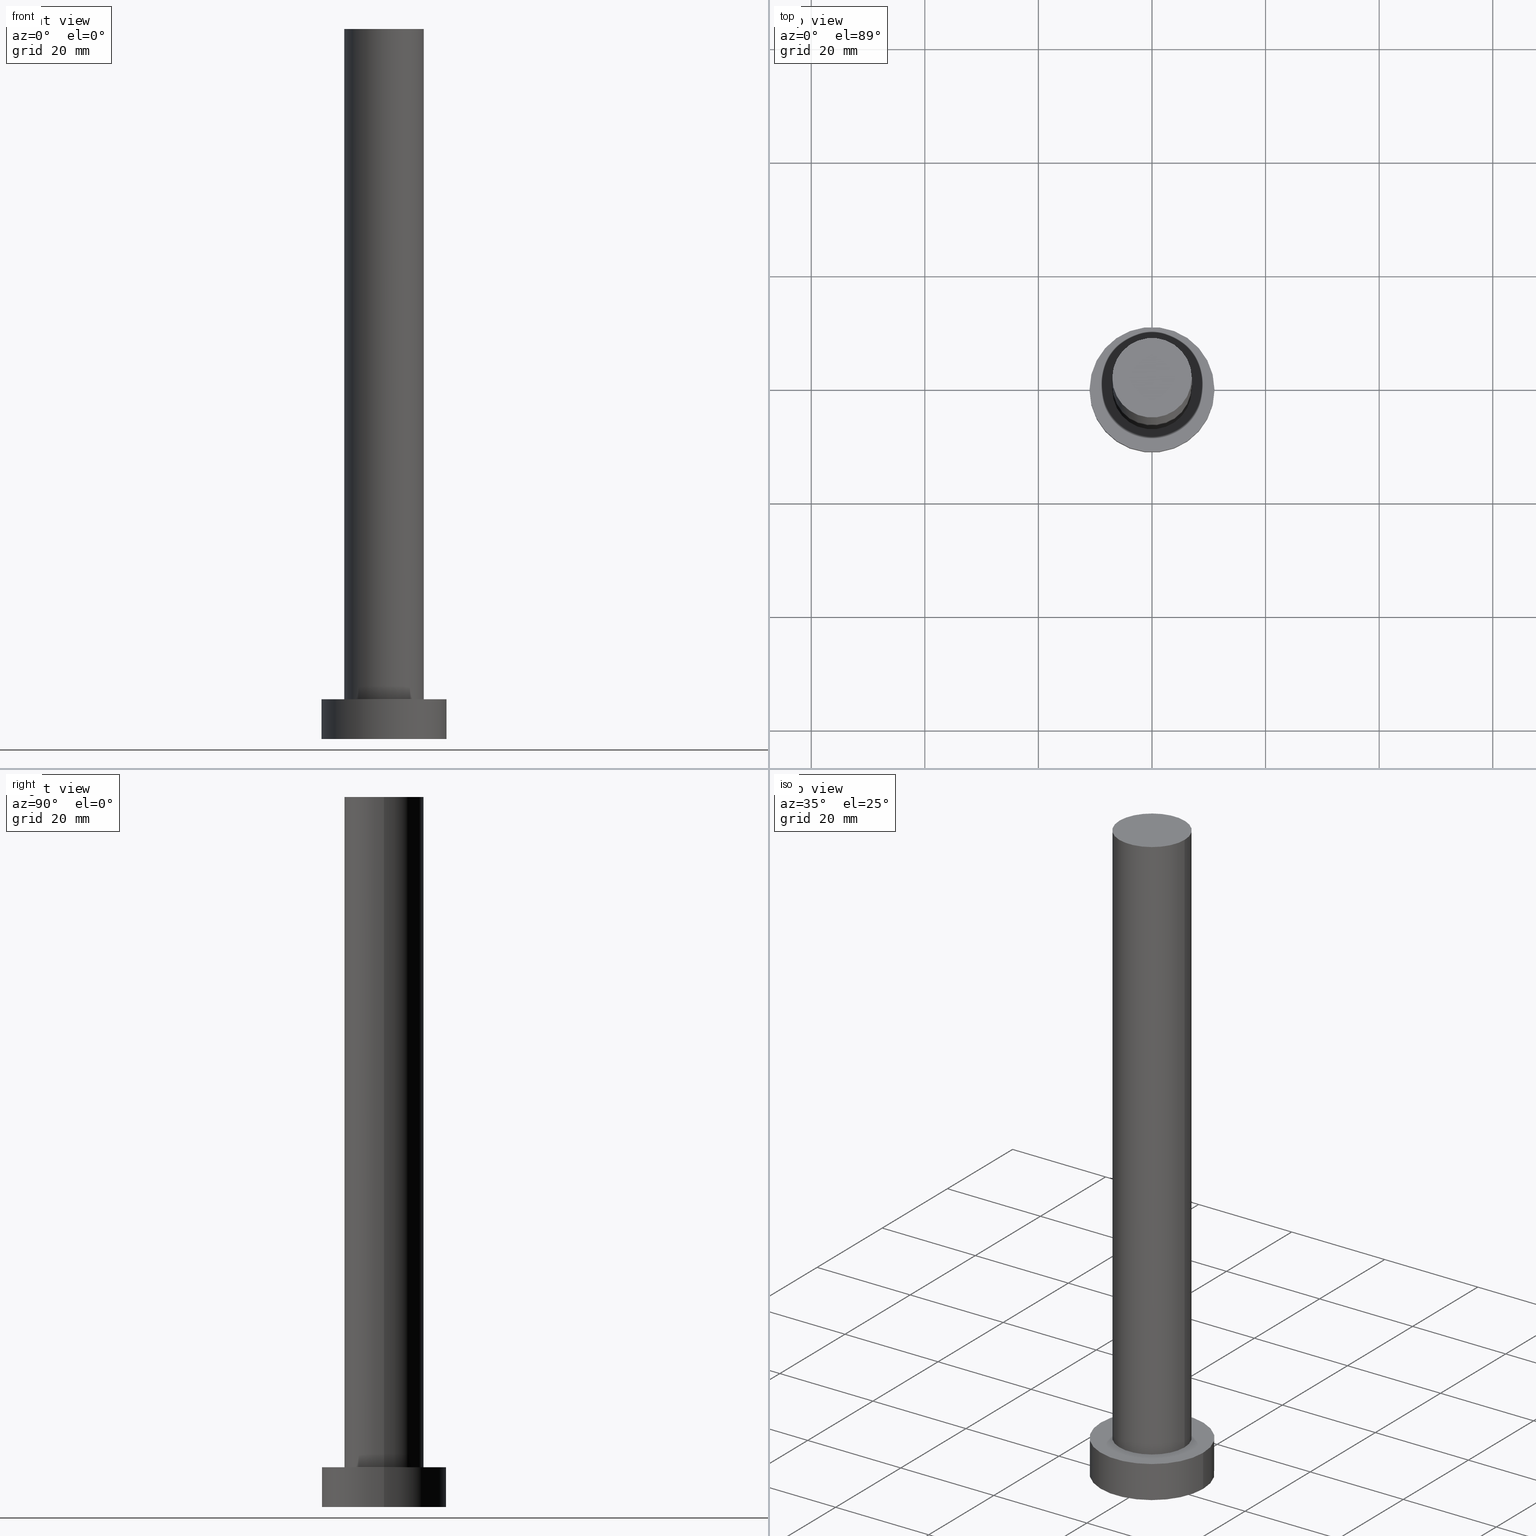
[diagram: canonical four-view strip — front | top / right | iso, engineering-drawing reading convention]
A machine part, canonical four-view strip (front | top / right | iso — engineering-drawing reading convention). The complete STEP part file that produces these views, byte-faithful:
ISO-10303-21;
HEADER;
FILE_DESCRIPTION (( 'STEP AP203' ),
    '1' );
FILE_NAME ('cb62.STEP',
    '2023-02-13T10:36:22',
    ( '' ),
    ( '' ),
    'SwSTEP 2.0',
    'SolidWorks 2019',
    '' );
FILE_SCHEMA (( 'CONFIG_CONTROL_DESIGN' ));
ENDSEC;

DATA;
#1 = ORIENTED_EDGE ( 'NONE', *, *, #49, .F. ) ;
#2 = DATE_TIME_ROLE ( 'creation_date' ) ;
#3 = ORIENTED_EDGE ( 'NONE', *, *, #49, .T. ) ;
#4 = AXIS2_PLACEMENT_3D ( 'NONE', #154, #48, #62 ) ;
#5 = ADVANCED_FACE ( 'NONE', ( #85 ), #21, .T. ) ;
#6 = FACE_OUTER_BOUND ( 'NONE', #74, .T. ) ;
#7 =( GEOMETRIC_REPRESENTATION_CONTEXT ( 3 ) GLOBAL_UNCERTAINTY_ASSIGNED_CONTEXT ( ( #224 ) ) GLOBAL_UNIT_ASSIGNED_CONTEXT ( ( #151, #159, #118 ) ) REPRESENTATION_CONTEXT ( 'NONE', 'WORKASPACE' ) );
#8 = DIRECTION ( 'NONE',  ( 1.000000000000000000, 0.000000000000000000, 0.000000000000000000 ) ) ;
#9 = ORIENTED_EDGE ( 'NONE', *, *, #175, .T. ) ;
#10 = AXIS2_PLACEMENT_3D ( 'NONE', #90, #253, #230 ) ;
#11 = DATE_AND_TIME ( #45, #251 ) ;
#12 = CARTESIAN_POINT ( 'NONE',  ( 0.000000000000000000, 0.000000000000000000, 7.000000000000000000 ) ) ;
#13 = DIRECTION ( 'NONE',  ( 0.000000000000000000, 0.000000000000000000, 1.000000000000000000 ) ) ;
#14 = VERTEX_POINT ( 'NONE', #163 ) ;
#15 = EDGE_CURVE ( 'NONE', #187, #27, #165, .T. ) ;
#16 = CC_DESIGN_PERSON_AND_ORGANIZATION_ASSIGNMENT ( #235, #121, ( #178 ) ) ;
#17 = AXIS2_PLACEMENT_3D ( 'NONE', #203, #42, #78 ) ;
#18 = CARTESIAN_POINT ( 'NONE',  ( -7.000000000000000888, 0.000000000000000000, 7.000000000000000000 ) ) ;
#19 = DIRECTION ( 'NONE',  ( 1.000000000000000000, 0.000000000000000000, 0.000000000000000000 ) ) ;
#20 = ORIENTED_EDGE ( 'NONE', *, *, #192, .T. ) ;
#21 = CYLINDRICAL_SURFACE ( 'NONE', #161, 7.000000000000000888 ) ;
#22 = CC_DESIGN_APPROVAL ( #115, ( #190 ) ) ;
#23 = AXIS2_PLACEMENT_3D ( 'NONE', #92, #13, #86 ) ;
#24 = DIRECTION ( 'NONE',  ( 0.000000000000000000, 0.000000000000000000, 1.000000000000000000 ) ) ;
#25 = CC_DESIGN_PERSON_AND_ORGANIZATION_ASSIGNMENT ( #135, #177, ( #190 ) ) ;
#26 = CARTESIAN_POINT ( 'NONE',  ( 7.000000000000000888, 8.572527594031474176E-16, 125.0000000000000000 ) ) ;
#27 = VERTEX_POINT ( 'NONE', #101 ) ;
#28 = ORGANIZATION ( 'NEUR�EN�', 'NEUR�EN�', '' ) ;
#29 = ORIENTED_EDGE ( 'NONE', *, *, #63, .F. ) ;
#30 = CALENDAR_DATE ( 2023, 13, 2 ) ;
#31 = COORDINATED_UNIVERSAL_TIME_OFFSET ( 1, 0, .AHEAD. ) ;
#32 = CC_DESIGN_APPROVAL ( #145, ( #167 ) ) ;
#33 = CALENDAR_DATE ( 2023, 13, 2 ) ;
#34 = ORIENTED_EDGE ( 'NONE', *, *, #225, .T. ) ;
#35 = DIRECTION ( 'NONE',  ( -1.000000000000000000, 0.000000000000000000, 0.000000000000000000 ) ) ;
#36 = AXIS2_PLACEMENT_3D ( 'NONE', #12, #88, #232 ) ;
#37 = PRODUCT_RELATED_PRODUCT_CATEGORY ( 'detail', '', ( #71 ) ) ;
#38 = CARTESIAN_POINT ( 'NONE',  ( 0.000000000000000000, 0.000000000000000000, 7.000000000000000000 ) ) ;
#39 = DESIGN_CONTEXT ( 'detailed design', #120, 'design' ) ;
#40 = LINE ( 'NONE', #221, #96 ) ;
#41 = ORIENTED_EDGE ( 'NONE', *, *, #131, .F. ) ;
#42 = DIRECTION ( 'NONE',  ( 0.000000000000000000, 0.000000000000000000, 1.000000000000000000 ) ) ;
#43 = CIRCLE ( 'NONE', #226, 11.00000000000000000 ) ;
#44 = PERSON_AND_ORGANIZATION ( #80, #28 ) ;
#45 = CALENDAR_DATE ( 2023, 13, 2 ) ;
#46 = ADVANCED_FACE ( 'NONE', ( #6 ), #191, .T. ) ;
#47 = APPLICATION_PROTOCOL_DEFINITION ( 'international standard', 'config_control_design', 1994, #120 ) ;
#48 = DIRECTION ( 'NONE',  ( -0.000000000000000000, -0.000000000000000000, -1.000000000000000000 ) ) ;
#49 = EDGE_CURVE ( 'NONE', #14, #27, #87, .T. ) ;
#50 = AXIS2_PLACEMENT_3D ( 'NONE', #55, #146, #35 ) ;
#51 = ORIENTED_EDGE ( 'NONE', *, *, #75, .F. ) ;
#52 = CC_DESIGN_PERSON_AND_ORGANIZATION_ASSIGNMENT ( #67, #110, ( #167 ) ) ;
#53 = VERTEX_POINT ( 'NONE', #98 ) ;
#54 = CC_DESIGN_SECURITY_CLASSIFICATION ( #190, ( #167 ) ) ;
#55 = CARTESIAN_POINT ( 'NONE',  ( 0.000000000000000000, 0.000000000000000000, 125.0000000000000000 ) ) ;
#56 = CARTESIAN_POINT ( 'NONE',  ( 0.000000000000000000, 0.000000000000000000, 0.000000000000000000 ) ) ;
#57 = LINE ( 'NONE', #125, #228 ) ;
#58 = PLANE ( 'NONE',  #17 ) ;
#59 = DIRECTION ( 'NONE',  ( -0.000000000000000000, -0.000000000000000000, -1.000000000000000000 ) ) ;
#60 = DIRECTION ( 'NONE',  ( -1.000000000000000000, 0.000000000000000000, 0.000000000000000000 ) ) ;
#61 = AXIS2_PLACEMENT_3D ( 'NONE', #207, #137, #197 ) ;
#62 = DIRECTION ( 'NONE',  ( -1.000000000000000000, 0.000000000000000000, 0.000000000000000000 ) ) ;
#63 = EDGE_CURVE ( 'NONE', #186, #53, #57, .T. ) ;
#64 = APPROVAL_DATE_TIME ( #250, #115 ) ;
#65 = AXIS2_PLACEMENT_3D ( 'NONE', #168, #222, #8 ) ;
#66 = PERSON_AND_ORGANIZATION ( #80, #28 ) ;
#67 = PERSON_AND_ORGANIZATION ( #80, #28 ) ;
#68 = FACE_OUTER_BOUND ( 'NONE', #94, .T. ) ;
#69 = EDGE_LOOP ( 'NONE', ( #76, #162 ) ) ;
#70 = CC_DESIGN_PERSON_AND_ORGANIZATION_ASSIGNMENT ( #44, #133, ( #71 ) ) ;
#71 = PRODUCT ( 'cb62', 'cb62', '', ( #93 ) ) ;
#72 = CIRCLE ( 'NONE', #65, 7.000000000000000888 ) ;
#73 = PERSON_AND_ORGANIZATION ( #80, #28 ) ;
#74 = EDGE_LOOP ( 'NONE', ( #29, #242, #9, #160 ) ) ;
#75 = EDGE_CURVE ( 'NONE', #186, #209, #72, .T. ) ;
#76 = ORIENTED_EDGE ( 'NONE', *, *, #103, .T. ) ;
#77 = AXIS2_PLACEMENT_3D ( 'NONE', #38, #99, #81 ) ;
#78 = DIRECTION ( 'NONE',  ( 1.000000000000000000, 0.000000000000000000, -0.000000000000000000 ) ) ;
#79 = EDGE_LOOP ( 'NONE', ( #1, #144 ) ) ;
#80 = PERSON ( 'NEUR�EN�', 'NEUR�EN�', 'NEUR�EN�', ('NEUR�EN�'), ('NEUR�EN�'), ('NEUR�EN�') ) ;
#81 = DIRECTION ( 'NONE',  ( 1.000000000000000000, 0.000000000000000000, 0.000000000000000000 ) ) ;
#82 = CARTESIAN_POINT ( 'NONE',  ( 0.000000000000000000, 0.000000000000000000, 7.000000000000000000 ) ) ;
#83 = CARTESIAN_POINT ( 'NONE',  ( -11.00000000000000000, 0.000000000000000000, 7.000000000000000000 ) ) ;
#84 = APPROVAL ( #229, 'NEUR�EN�' ) ;
#85 = FACE_OUTER_BOUND ( 'NONE', #185, .T. ) ;
#86 = DIRECTION ( 'NONE',  ( 1.000000000000000000, 0.000000000000000000, 0.000000000000000000 ) ) ;
#87 = CIRCLE ( 'NONE', #200, 11.00000000000000000 ) ;
#88 = DIRECTION ( 'NONE',  ( -0.000000000000000000, -0.000000000000000000, -1.000000000000000000 ) ) ;
#89 = CARTESIAN_POINT ( 'NONE',  ( 11.00000000000000000, 1.347111479062088405E-15, 7.000000000000000000 ) ) ;
#90 = CARTESIAN_POINT ( 'NONE',  ( 0.000000000000000000, 0.000000000000000000, 0.000000000000000000 ) ) ;
#91 = PERSON_AND_ORGANIZATION_ROLE ( 'creator' ) ;
#92 = CARTESIAN_POINT ( 'NONE',  ( 0.000000000000000000, 0.000000000000000000, 0.000000000000000000 ) ) ;
#93 = MECHANICAL_CONTEXT ( 'NONE', #212, 'mechanical' ) ;
#94 = EDGE_LOOP ( 'NONE', ( #217, #41, #156, #3 ) ) ;
#95 = EDGE_CURVE ( 'NONE', #53, #116, #134, .T. ) ;
#96 = VECTOR ( 'NONE', #205, 1000.000000000000000 ) ;
#97 = VECTOR ( 'NONE', #170, 1000.000000000000000 ) ;
#98 = CARTESIAN_POINT ( 'NONE',  ( 7.000000000000000888, 8.572527594031474176E-16, 7.000000000000000000 ) ) ;
#99 = DIRECTION ( 'NONE',  ( 0.000000000000000000, 0.000000000000000000, 1.000000000000000000 ) ) ;
#100 = EDGE_CURVE ( 'NONE', #215, #14, #246, .T. ) ;
#101 = CARTESIAN_POINT ( 'NONE',  ( 11.00000000000000000, 1.347111479062088405E-15, 0.000000000000000000 ) ) ;
#102 = APPROVAL_PERSON_ORGANIZATION ( #73, #145, #142 ) ;
#103 = EDGE_CURVE ( 'NONE', #209, #186, #158, .T. ) ;
#104 = ORIENTED_EDGE ( 'NONE', *, *, #100, .F. ) ;
#105 = ADVANCED_FACE ( 'NONE', ( #109 ), #198, .T. ) ;
#106 = ADVANCED_FACE ( 'NONE', ( #149 ), #58, .T. ) ;
#107 = APPROVAL_ROLE ( '' ) ;
#108 = CIRCLE ( 'NONE', #23, 11.00000000000000000 ) ;
#109 = FACE_OUTER_BOUND ( 'NONE', #233, .T. ) ;
#110 = PERSON_AND_ORGANIZATION_ROLE ( 'design_supplier' ) ;
#111 = ADVANCED_BREP_SHAPE_REPRESENTATION ( 'cb62', ( #157, #10 ), #7 ) ;
#112 = ORIENTED_EDGE ( 'NONE', *, *, #63, .T. ) ;
#113 = CARTESIAN_POINT ( 'NONE',  ( 0.000000000000000000, 0.000000000000000000, 7.000000000000000000 ) ) ;
#114 = APPROVAL_PERSON_ORGANIZATION ( #213, #115, #107 ) ;
#115 = APPROVAL ( #227, 'NEUR�EN�' ) ;
#116 = VERTEX_POINT ( 'NONE', #18 ) ;
#117 = DATE_AND_TIME ( #30, #173 ) ;
#118 =( NAMED_UNIT ( * ) SI_UNIT ( $, .STERADIAN. ) SOLID_ANGLE_UNIT ( ) );
#119 = COORDINATED_UNIVERSAL_TIME_OFFSET ( 1, 0, .AHEAD. ) ;
#120 = APPLICATION_CONTEXT ( 'configuration controlled 3d designs of mechanical parts and assemblies' ) ;
#121 = PERSON_AND_ORGANIZATION_ROLE ( 'creator' ) ;
#122 = ORIENTED_EDGE ( 'NONE', *, *, #95, .T. ) ;
#123 = AXIS2_PLACEMENT_3D ( 'NONE', #113, #155, #206 ) ;
#124 = CARTESIAN_POINT ( 'NONE',  ( 0.000000000000000000, 0.000000000000000000, 0.000000000000000000 ) ) ;
#125 = CARTESIAN_POINT ( 'NONE',  ( 7.000000000000000888, 8.572527594031474176E-16, 125.0000000000000000 ) ) ;
#126 = DIRECTION ( 'NONE',  ( 0.000000000000000000, 0.000000000000000000, 1.000000000000000000 ) ) ;
#127 = CARTESIAN_POINT ( 'NONE',  ( 0.000000000000000000, 0.000000000000000000, 125.0000000000000000 ) ) ;
#128 = DIRECTION ( 'NONE',  ( 1.000000000000000000, 0.000000000000000000, 0.000000000000000000 ) ) ;
#129 = DIRECTION ( 'NONE',  ( 0.000000000000000000, 0.000000000000000000, 1.000000000000000000 ) ) ;
#130 = ORIENTED_EDGE ( 'NONE', *, *, #131, .T. ) ;
#131 = EDGE_CURVE ( 'NONE', #215, #187, #43, .T. ) ;
#132 = FACE_BOUND ( 'NONE', #139, .T. ) ;
#133 = PERSON_AND_ORGANIZATION_ROLE ( 'design_owner' ) ;
#134 = CIRCLE ( 'NONE', #77, 7.000000000000000888 ) ;
#135 = PERSON_AND_ORGANIZATION ( #80, #28 ) ;
#136 = EDGE_CURVE ( 'NONE', #116, #53, #202, .T. ) ;
#137 = DIRECTION ( 'NONE',  ( 0.000000000000000000, 0.000000000000000000, 1.000000000000000000 ) ) ;
#138 = CC_DESIGN_APPROVAL ( #84, ( #178 ) ) ;
#139 = EDGE_LOOP ( 'NONE', ( #241, #237 ) ) ;
#140 = CC_DESIGN_DATE_AND_TIME_ASSIGNMENT ( #117, #2, ( #178 ) ) ;
#141 = ORIENTED_EDGE ( 'NONE', *, *, #175, .F. ) ;
#142 = APPROVAL_ROLE ( '' ) ;
#143 = LOCAL_TIME ( 11, 36, 22.00000000000000000, #174 ) ;
#144 = ORIENTED_EDGE ( 'NONE', *, *, #192, .F. ) ;
#145 = APPROVAL ( #236, 'NEUR�EN�' ) ;
#146 = DIRECTION ( 'NONE',  ( -0.000000000000000000, -0.000000000000000000, -1.000000000000000000 ) ) ;
#147 = ORIENTED_EDGE ( 'NONE', *, *, #225, .F. ) ;
#148 = CARTESIAN_POINT ( 'NONE',  ( 0.000000000000000000, 0.000000000000000000, 7.000000000000000000 ) ) ;
#149 = FACE_OUTER_BOUND ( 'NONE', #69, .T. ) ;
#150 = CARTESIAN_POINT ( 'NONE',  ( -11.00000000000000000, 0.000000000000000000, 7.000000000000000000 ) ) ;
#151 =( LENGTH_UNIT ( ) NAMED_UNIT ( * ) SI_UNIT ( .MILLI., .METRE. ) );
#152 = SHAPE_DEFINITION_REPRESENTATION ( #240, #111 ) ;
#153 = LOCAL_TIME ( 11, 36, 22.00000000000000000, #119 ) ;
#154 = CARTESIAN_POINT ( 'NONE',  ( 0.000000000000000000, 0.000000000000000000, 7.000000000000000000 ) ) ;
#155 = DIRECTION ( 'NONE',  ( 0.000000000000000000, 0.000000000000000000, 1.000000000000000000 ) ) ;
#156 = ORIENTED_EDGE ( 'NONE', *, *, #100, .T. ) ;
#157 = MANIFOLD_SOLID_BREP ( 'P�idat vysunut�m3', #166 ) ;
#158 = CIRCLE ( 'NONE', #194, 7.000000000000000888 ) ;
#159 =( NAMED_UNIT ( * ) PLANE_ANGLE_UNIT ( ) SI_UNIT ( $, .RADIAN. ) );
#160 = ORIENTED_EDGE ( 'NONE', *, *, #136, .T. ) ;
#161 = AXIS2_PLACEMENT_3D ( 'NONE', #127, #171, #60 ) ;
#162 = ORIENTED_EDGE ( 'NONE', *, *, #75, .T. ) ;
#163 = CARTESIAN_POINT ( 'NONE',  ( -11.00000000000000000, 0.000000000000000000, 0.000000000000000000 ) ) ;
#164 = PLANE ( 'NONE',  #179 ) ;
#165 = LINE ( 'NONE', #189, #199 ) ;
#166 = CLOSED_SHELL ( 'NONE', ( #5, #105, #195, #181, #172, #46, #106 ) ) ;
#167 = PRODUCT_DEFINITION_FORMATION_WITH_SPECIFIED_SOURCE ( 'LIBOVOLN�', '', #71, .NOT_KNOWN. ) ;
#168 = CARTESIAN_POINT ( 'NONE',  ( 0.000000000000000000, 0.000000000000000000, 125.0000000000000000 ) ) ;
#169 = DIRECTION ( 'NONE',  ( 1.000000000000000000, 0.000000000000000000, 0.000000000000000000 ) ) ;
#170 = DIRECTION ( 'NONE',  ( -0.000000000000000000, -0.000000000000000000, -1.000000000000000000 ) ) ;
#171 = DIRECTION ( 'NONE',  ( -0.000000000000000000, -0.000000000000000000, -1.000000000000000000 ) ) ;
#172 = ADVANCED_FACE ( 'NONE', ( #244 ), #164, .F. ) ;
#173 = LOCAL_TIME ( 11, 36, 22.00000000000000000, #216 ) ;
#174 = COORDINATED_UNIVERSAL_TIME_OFFSET ( 1, 0, .AHEAD. ) ;
#175 = EDGE_CURVE ( 'NONE', #209, #116, #40, .T. ) ;
#176 = DIRECTION ( 'NONE',  ( 1.000000000000000000, 0.000000000000000000, 0.000000000000000000 ) ) ;
#177 = PERSON_AND_ORGANIZATION_ROLE ( 'classification_officer' ) ;
#178 = PRODUCT_DEFINITION ( 'NEZN�M�', '', #167, #39 ) ;
#179 = AXIS2_PLACEMENT_3D ( 'NONE', #56, #188, #204 ) ;
#180 = COORDINATED_UNIVERSAL_TIME_OFFSET ( 1, 0, .AHEAD. ) ;
#181 = ADVANCED_FACE ( 'NONE', ( #132, #255 ), #249, .T. ) ;
#182 = APPROVAL_DATE_TIME ( #201, #84 ) ;
#183 = CALENDAR_DATE ( 2023, 13, 2 ) ;
#184 = APPROVAL_DATE_TIME ( #238, #145 ) ;
#185 = EDGE_LOOP ( 'NONE', ( #51, #112, #122, #141 ) ) ;
#186 = VERTEX_POINT ( 'NONE', #26 ) ;
#187 = VERTEX_POINT ( 'NONE', #89 ) ;
#188 = DIRECTION ( 'NONE',  ( 0.000000000000000000, 0.000000000000000000, 1.000000000000000000 ) ) ;
#189 = CARTESIAN_POINT ( 'NONE',  ( 11.00000000000000000, 1.347111479062088405E-15, 7.000000000000000000 ) ) ;
#190 = SECURITY_CLASSIFICATION ( '', '', #231 ) ;
#191 = CYLINDRICAL_SURFACE ( 'NONE', #50, 7.000000000000000888 ) ;
#192 = EDGE_CURVE ( 'NONE', #27, #14, #108, .T. ) ;
#193 = CC_DESIGN_DATE_AND_TIME_ASSIGNMENT ( #11, #254, ( #190 ) ) ;
#194 = AXIS2_PLACEMENT_3D ( 'NONE', #247, #24, #176 ) ;
#195 = ADVANCED_FACE ( 'NONE', ( #68 ), #252, .T. ) ;
#196 = CALENDAR_DATE ( 2023, 13, 2 ) ;
#197 = DIRECTION ( 'NONE',  ( 1.000000000000000000, 0.000000000000000000, -0.000000000000000000 ) ) ;
#198 = CYLINDRICAL_SURFACE ( 'NONE', #36, 11.00000000000000000 ) ;
#199 = VECTOR ( 'NONE', #223, 1000.000000000000000 ) ;
#200 = AXIS2_PLACEMENT_3D ( 'NONE', #124, #243, #19 ) ;
#201 = DATE_AND_TIME ( #33, #245 ) ;
#202 = CIRCLE ( 'NONE', #218, 7.000000000000000888 ) ;
#203 = CARTESIAN_POINT ( 'NONE',  ( 0.000000000000000000, 0.000000000000000000, 125.0000000000000000 ) ) ;
#204 = DIRECTION ( 'NONE',  ( 1.000000000000000000, 0.000000000000000000, -0.000000000000000000 ) ) ;
#205 = DIRECTION ( 'NONE',  ( -0.000000000000000000, -0.000000000000000000, -1.000000000000000000 ) ) ;
#206 = DIRECTION ( 'NONE',  ( 1.000000000000000000, 0.000000000000000000, 0.000000000000000000 ) ) ;
#207 = CARTESIAN_POINT ( 'NONE',  ( 0.000000000000000000, 0.000000000000000000, 7.000000000000000000 ) ) ;
#208 = PERSON_AND_ORGANIZATION ( #80, #28 ) ;
#209 = VERTEX_POINT ( 'NONE', #210 ) ;
#210 = CARTESIAN_POINT ( 'NONE',  ( -7.000000000000000888, 0.000000000000000000, 125.0000000000000000 ) ) ;
#211 = APPLICATION_PROTOCOL_DEFINITION ( 'international standard', 'config_control_design', 1994, #212 ) ;
#212 = APPLICATION_CONTEXT ( 'configuration controlled 3d designs of mechanical parts and assemblies' ) ;
#213 = PERSON_AND_ORGANIZATION ( #80, #28 ) ;
#214 = CC_DESIGN_PERSON_AND_ORGANIZATION_ASSIGNMENT ( #208, #91, ( #167 ) ) ;
#215 = VERTEX_POINT ( 'NONE', #150 ) ;
#216 = COORDINATED_UNIVERSAL_TIME_OFFSET ( 1, 0, .AHEAD. ) ;
#217 = ORIENTED_EDGE ( 'NONE', *, *, #15, .F. ) ;
#218 = AXIS2_PLACEMENT_3D ( 'NONE', #82, #129, #169 ) ;
#219 = APPROVAL_ROLE ( '' ) ;
#220 = ORIENTED_EDGE ( 'NONE', *, *, #15, .T. ) ;
#221 = CARTESIAN_POINT ( 'NONE',  ( -7.000000000000000888, 0.000000000000000000, 125.0000000000000000 ) ) ;
#222 = DIRECTION ( 'NONE',  ( 0.000000000000000000, 0.000000000000000000, 1.000000000000000000 ) ) ;
#223 = DIRECTION ( 'NONE',  ( -0.000000000000000000, -0.000000000000000000, -1.000000000000000000 ) ) ;
#224 = UNCERTAINTY_MEASURE_WITH_UNIT (LENGTH_MEASURE( 1.000000000000000082E-05 ), #151, 'distance_accuracy_value', 'NONE');
#225 = EDGE_CURVE ( 'NONE', #187, #215, #234, .T. ) ;
#226 = AXIS2_PLACEMENT_3D ( 'NONE', #148, #126, #128 ) ;
#227 = APPROVAL_STATUS ( 'not_yet_approved' ) ;
#228 = VECTOR ( 'NONE', #59, 1000.000000000000000 ) ;
#229 = APPROVAL_STATUS ( 'not_yet_approved' ) ;
#230 = DIRECTION ( 'NONE',  ( 1.000000000000000000, 0.000000000000000000, 0.000000000000000000 ) ) ;
#231 = SECURITY_CLASSIFICATION_LEVEL ( 'unclassified' ) ;
#232 = DIRECTION ( 'NONE',  ( -1.000000000000000000, 0.000000000000000000, 0.000000000000000000 ) ) ;
#233 = EDGE_LOOP ( 'NONE', ( #147, #220, #20, #104 ) ) ;
#234 = CIRCLE ( 'NONE', #123, 11.00000000000000000 ) ;
#235 = PERSON_AND_ORGANIZATION ( #80, #28 ) ;
#236 = APPROVAL_STATUS ( 'not_yet_approved' ) ;
#237 = ORIENTED_EDGE ( 'NONE', *, *, #95, .F. ) ;
#238 = DATE_AND_TIME ( #183, #153 ) ;
#239 = EDGE_LOOP ( 'NONE', ( #130, #34 ) ) ;
#240 = PRODUCT_DEFINITION_SHAPE ( 'NONE', 'NONE',  #178 ) ;
#241 = ORIENTED_EDGE ( 'NONE', *, *, #136, .F. ) ;
#242 = ORIENTED_EDGE ( 'NONE', *, *, #103, .F. ) ;
#243 = DIRECTION ( 'NONE',  ( 0.000000000000000000, 0.000000000000000000, 1.000000000000000000 ) ) ;
#244 = FACE_OUTER_BOUND ( 'NONE', #79, .T. ) ;
#245 = LOCAL_TIME ( 11, 36, 22.00000000000000000, #31 ) ;
#246 = LINE ( 'NONE', #83, #97 ) ;
#247 = CARTESIAN_POINT ( 'NONE',  ( 0.000000000000000000, 0.000000000000000000, 125.0000000000000000 ) ) ;
#248 = APPROVAL_PERSON_ORGANIZATION ( #66, #84, #219 ) ;
#249 = PLANE ( 'NONE',  #61 ) ;
#250 = DATE_AND_TIME ( #196, #143 ) ;
#251 = LOCAL_TIME ( 11, 36, 22.00000000000000000, #180 ) ;
#252 = CYLINDRICAL_SURFACE ( 'NONE', #4, 11.00000000000000000 ) ;
#253 = DIRECTION ( 'NONE',  ( 0.000000000000000000, 0.000000000000000000, 1.000000000000000000 ) ) ;
#254 = DATE_TIME_ROLE ( 'classification_date' ) ;
#255 = FACE_OUTER_BOUND ( 'NONE', #239, .T. ) ;
ENDSEC;
END-ISO-10303-21;
